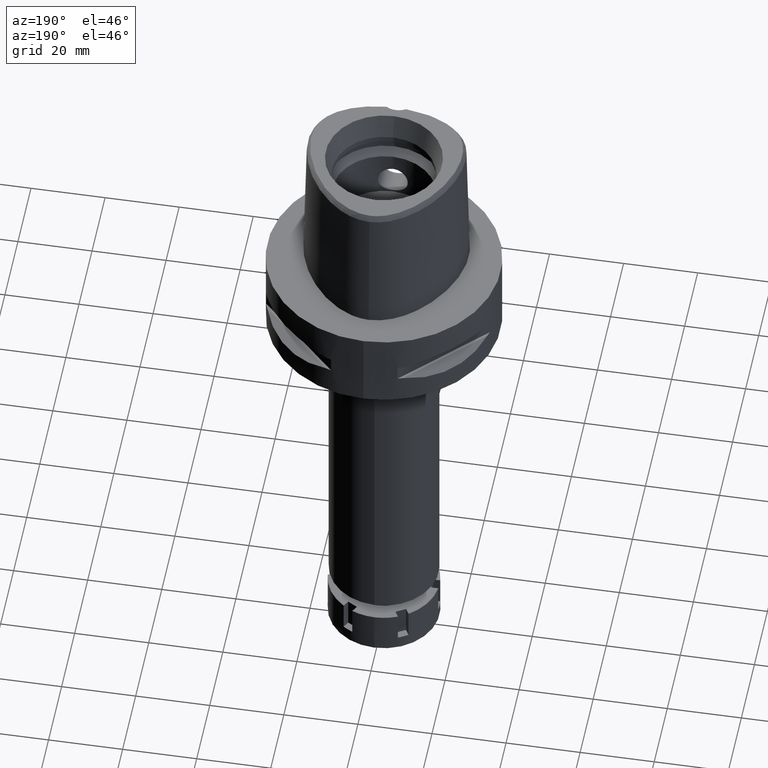
[diagram: clean part render]
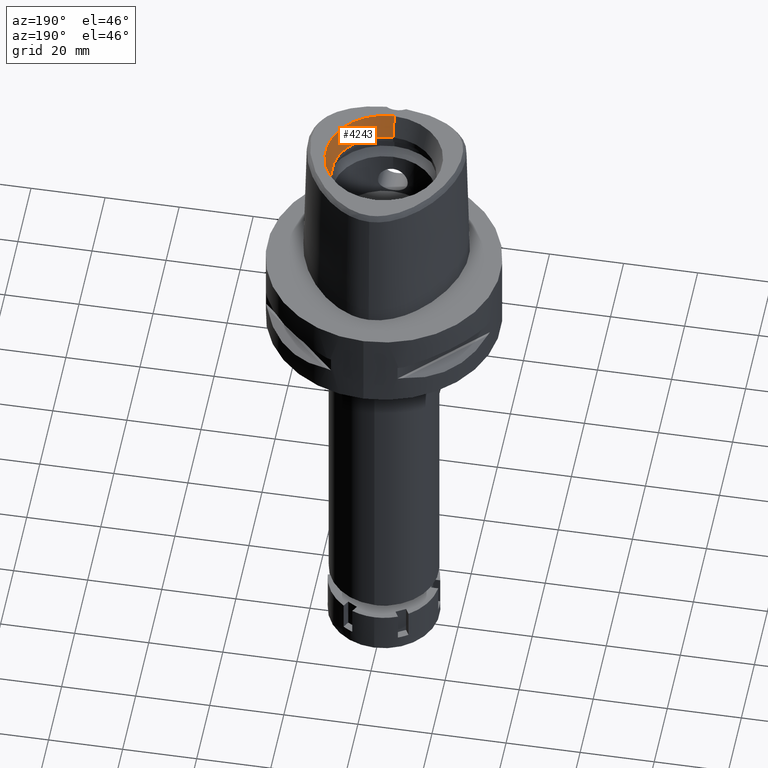
[diagram: same view with one face highlighted and labeled with its STEP entity id]
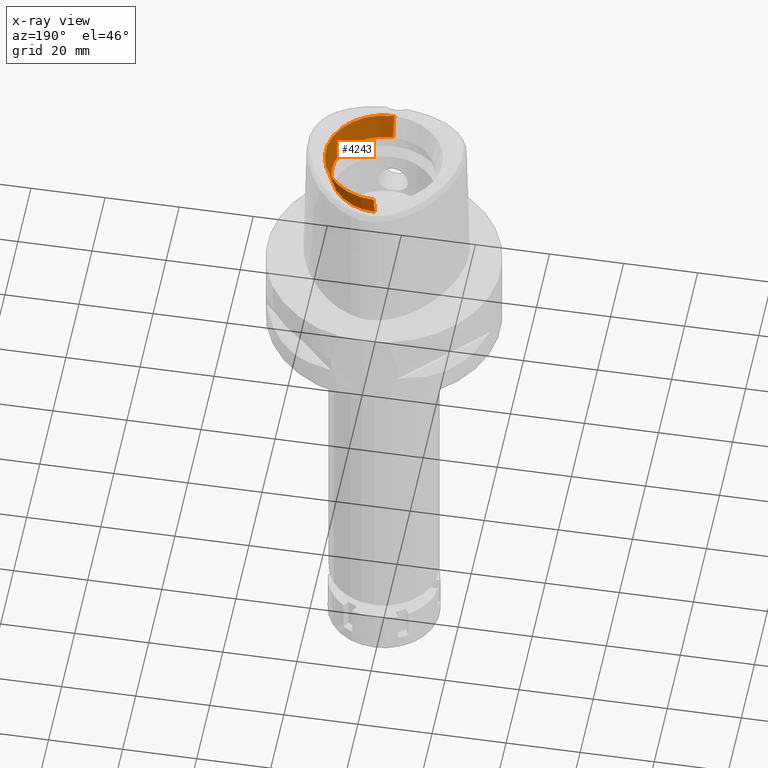
[diagram: x-ray of the same camera — body ghosted, the highlighted face saturated]
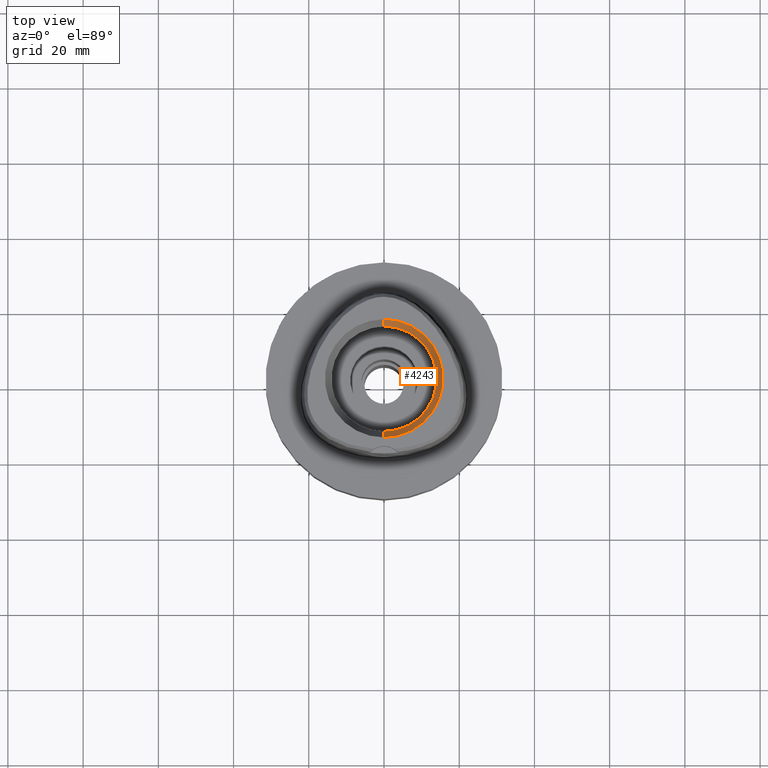
[diagram: same view with one face highlighted and labeled with its STEP entity id]
A machine part, auxiliary view. The second image highlights one B-rep face of the part: STEP entity #4243.
The next image is the same camera in x-ray: the body ghosted, the highlighted face saturated — about 0% of this face is hidden behind the body in this view.
A second angle (top view) of the same face is appended — the face is thin or edge-on in the first view.
In plain terms, the highlighted conical surface has half-angle 15 deg.
Its self-contained STEP definition (entity closure, byte-faithful):
#33 = LINE ( 'NONE', #3093, #2400 ) ;
#227 = EDGE_CURVE ( 'NONE', #1908, #1484, #5444, .T. ) ;
#288 = DIRECTION ( 'NONE',  ( 0.0000000000000000000, -1.000000000000000000, 0.0000000000000000000 ) ) ;
#641 = ORIENTED_EDGE ( 'NONE', *, *, #4617, .T. ) ;
#703 = AXIS2_PLACEMENT_3D ( 'NONE', #1149, #2864, #2322 ) ;
#818 = VECTOR ( 'NONE', #1660, 1000.000000000000000 ) ;
#935 = ORIENTED_EDGE ( 'NONE', *, *, #5292, .T. ) ;
#945 = AXIS2_PLACEMENT_3D ( 'NONE', #5173, #5228, #2650 ) ;
#1149 = CARTESIAN_POINT ( 'NONE',  ( 0.0000000000000000000, 0.0000000000000000000, 34.79999999999999716 ) ) ;
#1349 = DIRECTION ( 'NONE',  ( 0.0000000000000000000, -0.2588190451025869088, 0.9659258262890505486 ) ) ;
#1361 = CARTESIAN_POINT ( 'NONE',  ( 0.0000000000000000000, -15.71487483155999776, 38.00000000000000000 ) ) ;
#1484 = VERTEX_POINT ( 'NONE', #5301 ) ;
#1538 = EDGE_LOOP ( 'NONE', ( #2339, #5390, #935, #641 ) ) ;
#1595 = CIRCLE ( 'NONE', #5175, 14.00000000000000000 ) ;
#1660 = DIRECTION ( 'NONE',  ( 0.0000000000000000000, 0.2588190451025869088, 0.9659258262890505486 ) ) ;
#1908 = VERTEX_POINT ( 'NONE', #3009 ) ;
#2107 = VERTEX_POINT ( 'NONE', #3516 ) ;
#2322 = DIRECTION ( 'NONE',  ( 0.0000000000000000000, 1.000000000000000000, 0.0000000000000000000 ) ) ;
#2339 = ORIENTED_EDGE ( 'NONE', *, *, #227, .F. ) ;
#2382 = CARTESIAN_POINT ( 'NONE',  ( 0.0000000000000000000, 0.0000000000000000000, 31.60000000000000142 ) ) ;
#2391 = CARTESIAN_POINT ( 'NONE',  ( 0.0000000000000000000, 14.00000000000000000, 31.60000000000000142 ) ) ;
#2400 = VECTOR ( 'NONE', #1349, 1000.000000000000000 ) ;
#2650 = DIRECTION ( 'NONE',  ( 0.0000000000000000000, -1.000000000000000000, 0.0000000000000000000 ) ) ;
#2809 = DIRECTION ( 'NONE',  ( 0.0000000000000000000, 0.0000000000000000000, 1.000000000000000000 ) ) ;
#2864 = DIRECTION ( 'NONE',  ( 0.0000000000000000000, 0.0000000000000000000, 1.000000000000000000 ) ) ;
#3009 = CARTESIAN_POINT ( 'NONE',  ( 0.0000000000000000000, 14.00000000000000000, 31.60000000000000142 ) ) ;
#3093 = CARTESIAN_POINT ( 'NONE',  ( 0.0000000000000000000, -14.00000000000000000, 31.60000000000000142 ) ) ;
#3170 = EDGE_CURVE ( 'NONE', #2107, #1908, #1595, .T. ) ;
#3516 = CARTESIAN_POINT ( 'NONE',  ( 0.0000000000000000000, -14.00000000000000000, 31.60000000000000142 ) ) ;
#4085 = VERTEX_POINT ( 'NONE', #1361 ) ;
#4243 = ADVANCED_FACE ( 'NONE', ( #4930 ), #5525, .F. ) ;
#4366 = CIRCLE ( 'NONE', #945, 15.71487483155999776 ) ;
#4617 = EDGE_CURVE ( 'NONE', #4085, #1484, #4366, .T. ) ;
#4930 = FACE_OUTER_BOUND ( 'NONE', #1538, .T. ) ;
#5173 = CARTESIAN_POINT ( 'NONE',  ( 0.0000000000000000000, 0.0000000000000000000, 38.00000000000000000 ) ) ;
#5175 = AXIS2_PLACEMENT_3D ( 'NONE', #2382, #2809, #288 ) ;
#5228 = DIRECTION ( 'NONE',  ( 0.0000000000000000000, 0.0000000000000000000, 1.000000000000000000 ) ) ;
#5292 = EDGE_CURVE ( 'NONE', #2107, #4085, #33, .T. ) ;
#5301 = CARTESIAN_POINT ( 'NONE',  ( 0.0000000000000000000, 15.71487483155999776, 38.00000000000000000 ) ) ;
#5390 = ORIENTED_EDGE ( 'NONE', *, *, #3170, .F. ) ;
#5444 = LINE ( 'NONE', #2391, #818 ) ;
#5525 = CONICAL_SURFACE ( 'NONE', #703, 14.85743741577999977, 0.2617993877991000029 ) ;